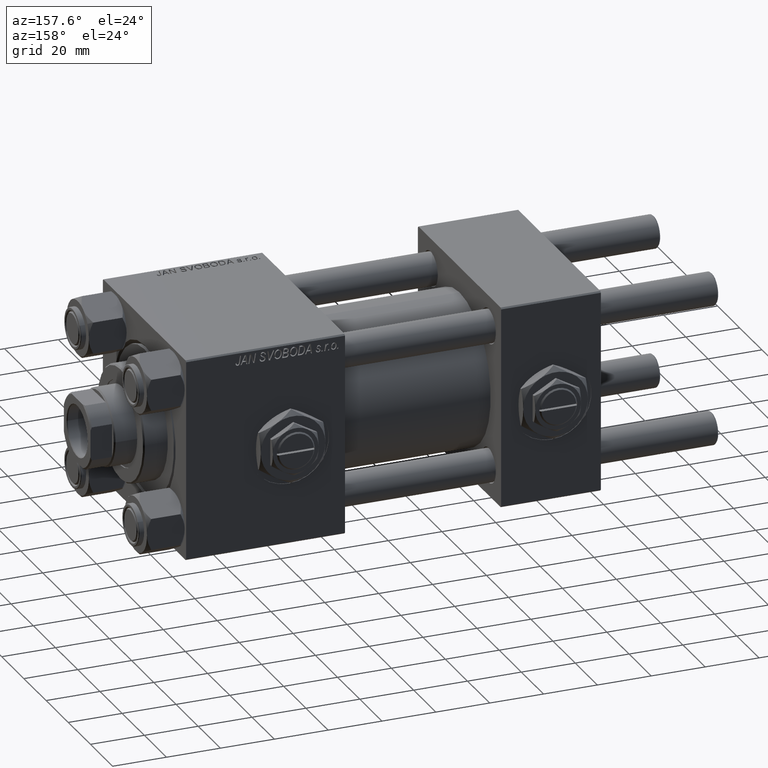
[diagram: clean part render]
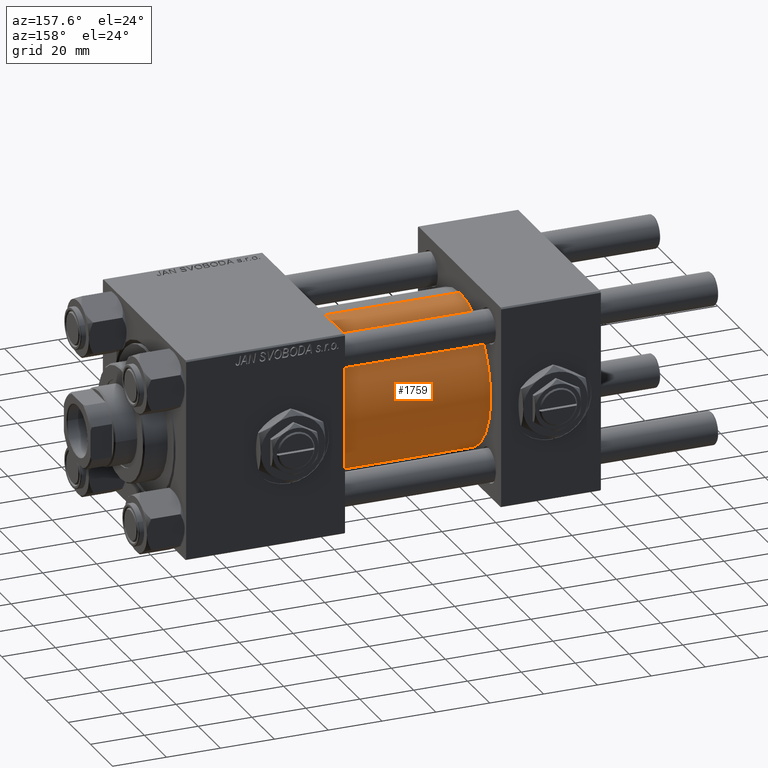
[diagram: same view with one face highlighted and labeled with its STEP entity id]
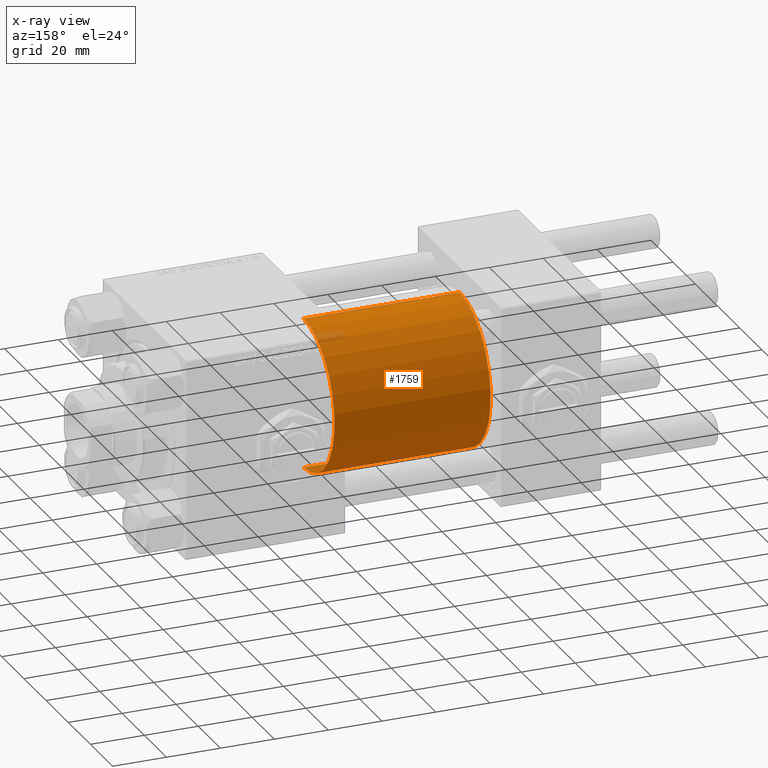
[diagram: x-ray of the same camera — body ghosted, the highlighted face saturated]
A machine part, auxiliary view. The second image highlights one B-rep face of the part: STEP entity #1759.
The next image is the same camera in x-ray: the body ghosted, the highlighted face saturated — about 2% of this face is hidden behind the body in this view.
In plain terms, the highlighted cylindrical surface (partial cylindrical patch) has radius 28 mm, axis along (-1, -0, -0).
Its self-contained STEP definition (entity closure, byte-faithful):
#1137 = DIRECTION ( 'NONE',  ( 0.000000000000000000, 0.000000000000000000, 1.000000000000000000 ) ) ;
#1759 = ADVANCED_FACE ( 'NONE', ( #47215 ), #38571, .T. ) ;
#3378 = CARTESIAN_POINT ( 'NONE',  ( 95.00000000000000000, 0.000000000000000000, 28.00000000000000000 ) ) ;
#6212 = ORIENTED_EDGE ( 'NONE', *, *, #47585, .F. ) ;
#7046 = VECTOR ( 'NONE', #15243, 1000.000000000000000 ) ;
#7448 = CARTESIAN_POINT ( 'NONE',  ( 37.00000000000000000, 3.429011037612588487E-15, -28.00000000000000000 ) ) ;
#8154 = LINE ( 'NONE', #47257, #7046 ) ;
#9762 = CIRCLE ( 'NONE', #50802, 28.00000000000000000 ) ;
#11535 = CARTESIAN_POINT ( 'NONE',  ( 95.00000000000000000, 0.000000000000000000, 0.000000000000000000 ) ) ;
#12030 = VERTEX_POINT ( 'NONE', #7448 ) ;
#12195 = CARTESIAN_POINT ( 'NONE',  ( 95.00000000000000000, 0.000000000000000000, 28.00000000000000000 ) ) ;
#15243 = DIRECTION ( 'NONE',  ( -1.000000000000000000, -0.000000000000000000, -0.000000000000000000 ) ) ;
#16830 = CARTESIAN_POINT ( 'NONE',  ( 95.00000000000000000, 3.429011037612588487E-15, -28.00000000000000000 ) ) ;
#16905 = DIRECTION ( 'NONE',  ( 1.000000000000000000, -0.000000000000000000, 0.000000000000000000 ) ) ;
#18303 = CARTESIAN_POINT ( 'NONE',  ( 95.00000000000000000, 0.000000000000000000, 0.000000000000000000 ) ) ;
#19066 = VERTEX_POINT ( 'NONE', #25042 ) ;
#25042 = CARTESIAN_POINT ( 'NONE',  ( 37.00000000000000000, 0.000000000000000000, 28.00000000000000000 ) ) ;
#26160 = DIRECTION ( 'NONE',  ( 0.000000000000000000, 0.000000000000000000, -1.000000000000000000 ) ) ;
#31187 = ORIENTED_EDGE ( 'NONE', *, *, #35680, .T. ) ;
#32165 = ORIENTED_EDGE ( 'NONE', *, *, #47838, .F. ) ;
#34310 = DIRECTION ( 'NONE',  ( 1.000000000000000000, 0.000000000000000000, 0.000000000000000000 ) ) ;
#35680 = EDGE_CURVE ( 'NONE', #51581, #12030, #8154, .T. ) ;
#37380 = ORIENTED_EDGE ( 'NONE', *, *, #44788, .T. ) ;
#38571 = CYLINDRICAL_SURFACE ( 'NONE', #51245, 28.00000000000000000 ) ;
#39171 = VECTOR ( 'NONE', #51136, 1000.000000000000000 ) ;
#40225 = EDGE_LOOP ( 'NONE', ( #32165, #31187, #37380, #6212 ) ) ;
#40495 = VERTEX_POINT ( 'NONE', #12195 ) ;
#40859 = AXIS2_PLACEMENT_3D ( 'NONE', #18303, #34310, #26160 ) ;
#43024 = DIRECTION ( 'NONE',  ( 0.000000000000000000, 0.000000000000000000, 1.000000000000000000 ) ) ;
#43539 = LINE ( 'NONE', #3378, #39171 ) ;
#44788 = EDGE_CURVE ( 'NONE', #12030, #19066, #9762, .T. ) ;
#47215 = FACE_OUTER_BOUND ( 'NONE', #40225, .T. ) ;
#47257 = CARTESIAN_POINT ( 'NONE',  ( 95.00000000000000000, 3.429011037612588487E-15, -28.00000000000000000 ) ) ;
#47585 = EDGE_CURVE ( 'NONE', #40495, #19066, #43539, .T. ) ;
#47838 = EDGE_CURVE ( 'NONE', #51581, #40495, #50062, .T. ) ;
#48899 = CARTESIAN_POINT ( 'NONE',  ( 37.00000000000000000, 0.000000000000000000, 0.000000000000000000 ) ) ;
#50062 = CIRCLE ( 'NONE', #40859, 28.00000000000000000 ) ;
#50802 = AXIS2_PLACEMENT_3D ( 'NONE', #48899, #16905, #1137 ) ;
#51136 = DIRECTION ( 'NONE',  ( -1.000000000000000000, -0.000000000000000000, -0.000000000000000000 ) ) ;
#51245 = AXIS2_PLACEMENT_3D ( 'NONE', #11535, #51662, #43024 ) ;
#51581 = VERTEX_POINT ( 'NONE', #16830 ) ;
#51662 = DIRECTION ( 'NONE',  ( -1.000000000000000000, -0.000000000000000000, -0.000000000000000000 ) ) ;